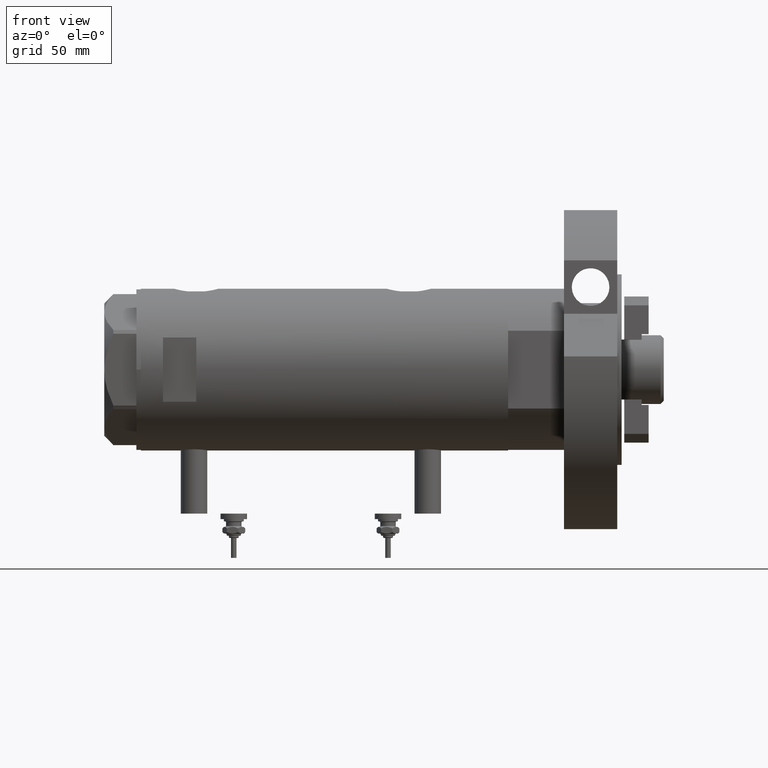
[diagram: clean part render]
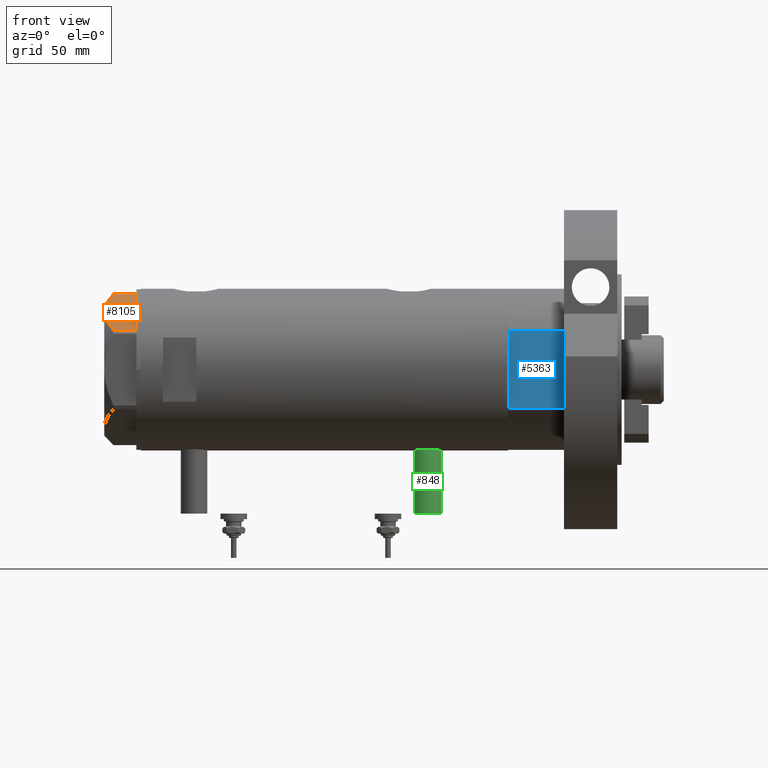
[diagram: same view with three faces highlighted in distinct colors, each labeled with its STEP entity id]
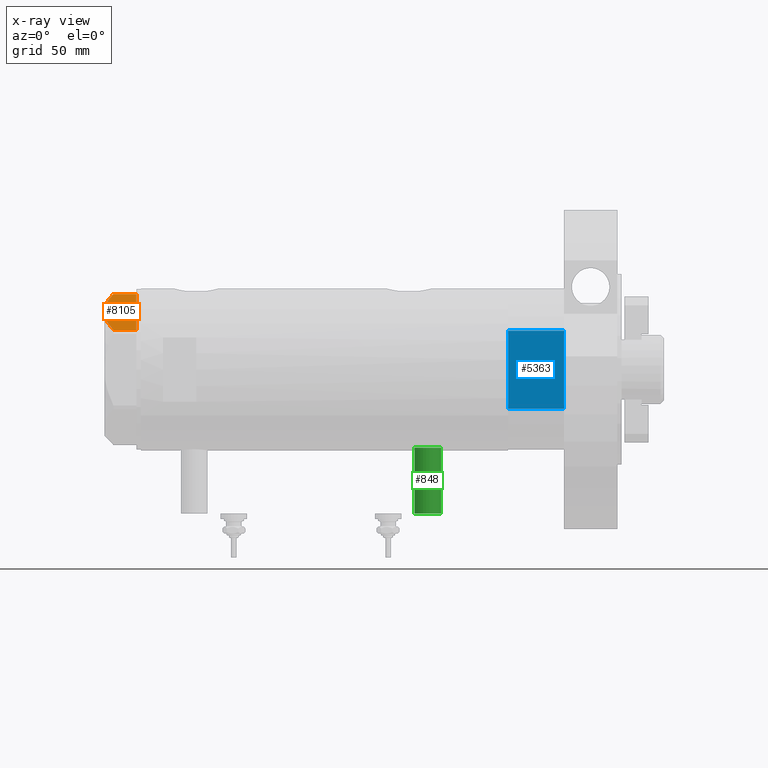
[diagram: x-ray of the same camera — body ghosted, the three highlighted faces saturated]
A machine part, front view with three faces highlighted in distinct colors.
The next image is the same camera in x-ray (body ghosted, the three faces saturated) — at least one of them is partly hidden behind the body in this view.
Their STEP definitions:

[orange] entity #8105 — the highlighted planar face has unit normal (-0, 0.5, -0.866).
#268 = CARTESIAN_POINT ( 'NONE',  ( -0.9699484522385841689, -34.08101615137752560, 10.40518423703605322 ) ) ;
#270 = VERTEX_POINT ( 'NONE', #3466 ) ;
#296 = VERTEX_POINT ( 'NONE', #1033 ) ;
#305 = CARTESIAN_POINT ( 'NONE',  ( -0.9699484522385886098, -34.08101615137752560, 0.000000000000000000 ) ) ;
#348 = EDGE_CURVE ( 'NONE', #2807, #270, #2880, .T. ) ;
#423 = CARTESIAN_POINT ( 'NONE',  ( -30.00000000000000000, -17.32050807568877460, 0.000000000000000000 ) ) ;
#453 = CARTESIAN_POINT ( 'NONE',  ( -16.22616138060132940, -25.27283751037305137, 14.47500996539161910 ) ) ;
#631 = ORIENTED_EDGE ( 'NONE', *, *, #7159, .F. ) ;
#867 = ORIENTED_EDGE ( 'NONE', *, *, #8203, .T. ) ;
#1033 = CARTESIAN_POINT ( 'NONE',  ( -14.99999999999999645, -25.98076211353316367, 14.50000000000000000 ) ) ;
#1140 = VECTOR ( 'NONE', #2902, 1000.000000000000227 ) ;
#1246 = B_SPLINE_CURVE_WITH_KNOTS ( 'NONE', 3,
 ( #4242, #2351, #6017, #4916, #1525, #4070, #6648, #1567, #3522, #268 ),
 .UNSPECIFIED., .F., .F.,
 ( 4, 2, 2, 2, 4 ),
 ( 0.01795453117522812295, 0.02625795893839792672, 0.02833381587919037853, 0.03040967281998283034, 0.03456138670156772702 ),
 .UNSPECIFIED. ) ;
#1307 = EDGE_CURVE ( 'NONE', #296, #270, #1246, .T. ) ;
#1525 = CARTESIAN_POINT ( 'NONE',  ( -6.639151835533460222, -30.80790005194150183, 12.99122625442232604 ) ) ;
#1567 = CARTESIAN_POINT ( 'NONE',  ( -3.192653970405496811, -32.79773652213460622, 11.56973717813738745 ) ) ;
#1649 = PLANE ( 'NONE',  #6001 ) ;
#2289 = VECTOR ( 'NONE', #4176, 1000.000000000000000 ) ;
#2329 = CARTESIAN_POINT ( 'NONE',  ( -21.07077273125423744, -22.47579984295447630, 13.71922620632299150 ) ) ;
#2351 = CARTESIAN_POINT ( 'NONE',  ( -12.56968319190124639, -27.38390617690504669, 14.50000000000000711 ) ) ;
#2370 = CARTESIAN_POINT ( 'NONE',  ( -15.61187731150016411, -25.62749458302751648, 14.50000000000000355 ) ) ;
#2807 = VERTEX_POINT ( 'NONE', #305 ) ;
#2863 = CARTESIAN_POINT ( 'NONE',  ( -30.00000000000000000, -17.32050807568877460, 14.50000000000000000 ) ) ;
#2880 = LINE ( 'NONE', #3583, #2289 ) ;
#2902 = DIRECTION ( 'NONE',  ( 0.8660254037844387076, -0.4999999999999997780, 0.000000000000000000 ) ) ;
#2984 = FACE_OUTER_BOUND ( 'NONE', #6954, .T. ) ;
#3089 = CARTESIAN_POINT ( 'NONE',  ( -29.03005154776157326, -17.88050807568868805, 10.40518423703595374 ) ) ;
#3466 = CARTESIAN_POINT ( 'NONE',  ( -0.9699484522385841689, -34.08101615137752560, 10.40518423703605322 ) ) ;
#3522 = CARTESIAN_POINT ( 'NONE',  ( -2.073315687465953960, -33.44398678110400169, 11.01056656432686509 ) ) ;
#3583 = CARTESIAN_POINT ( 'NONE',  ( -0.9699484522385850571, -34.08101615137752560, 14.50000000000000000 ) ) ;
#3622 = CARTESIAN_POINT ( 'NONE',  ( -24.56959650245797988, -20.45575299680293568, 12.63511531451932512 ) ) ;
#3679 = CARTESIAN_POINT ( 'NONE',  ( -29.03005154776157326, -17.88050807568868805, 10.40518423703595374 ) ) ;
#3707 = VECTOR ( 'NONE', #3777, 1000.000000000000000 ) ;
#3777 = DIRECTION ( 'NONE',  ( -0.000000000000000000, 0.000000000000000000, -1.000000000000000000 ) ) ;
#4070 = CARTESIAN_POINT ( 'NONE',  ( -5.477433827011700451, -31.47861825688396564, 12.55468001512206300 ) ) ;
#4176 = DIRECTION ( 'NONE',  ( 0.000000000000000000, 0.000000000000000000, 1.000000000000000000 ) ) ;
#4242 = CARTESIAN_POINT ( 'NONE',  ( -14.99999999999999645, -25.98076211353316367, 14.50000000000000000 ) ) ;
#4303 = CARTESIAN_POINT ( 'NONE',  ( -18.07068105770097688, -24.20790357827401351, 14.29910535634586921 ) ) ;
#4415 = VERTEX_POINT ( 'NONE', #6071 ) ;
#4449 = LINE ( 'NONE', #5088, #3707 ) ;
#4797 = EDGE_CURVE ( 'NONE', #4415, #2807, #6730, .T. ) ;
#4916 = CARTESIAN_POINT ( 'NONE',  ( -7.227334865371702222, -30.46831242133162476, 13.19311392138147276 ) ) ;
#5088 = CARTESIAN_POINT ( 'NONE',  ( -29.03005154776141339, -17.88050807568878042, 14.50000000000000000 ) ) ;
#5360 = VERTEX_POINT ( 'NONE', #3679 ) ;
#5572 = CARTESIAN_POINT ( 'NONE',  ( -19.88494945387373747, -23.16043523136143278, 14.00566141361761119 ) ) ;
#5596 = DIRECTION ( 'NONE',  ( 0.4999999999999998335, 0.8660254037844388186, -0.000000000000000000 ) ) ;
#5973 = B_SPLINE_CURVE_WITH_KNOTS ( 'NONE', 3,
 ( #3089, #8154, #3622, #2329, #5572, #4303, #8239, #453, #2370, #6118 ),
 .UNSPECIFIED., .F., .F.,
 ( 4, 2, 2, 2, 4 ),
 ( 0.001230196178133391958, 0.009592363676680756152, 0.01377344742595443955, 0.01586398930059127951, 0.01795453117522812295 ),
 .UNSPECIFIED. ) ;
#6001 = AXIS2_PLACEMENT_3D ( 'NONE', #2863, #5596, #8131 ) ;
#6017 = CARTESIAN_POINT ( 'NONE',  ( -10.17780078270465616, -28.76486012972462447, 14.10092492974135148 ) ) ;
#6071 = CARTESIAN_POINT ( 'NONE',  ( -29.03005154776141339, -17.88050807568878042, 0.000000000000000000 ) ) ;
#6118 = CARTESIAN_POINT ( 'NONE',  ( -14.99999999999999645, -25.98076211353316367, 14.50000000000000000 ) ) ;
#6648 = CARTESIAN_POINT ( 'NONE',  ( -4.902385341342997194, -31.81062265488187535, 12.31959434659020758 ) ) ;
#6730 = LINE ( 'NONE', #423, #1140 ) ;
#6954 = EDGE_LOOP ( 'NONE', ( #631, #867, #8272, #8107, #7703 ) ) ;
#7159 = EDGE_CURVE ( 'NONE', #5360, #296, #5973, .T. ) ;
#7703 = ORIENTED_EDGE ( 'NONE', *, *, #1307, .F. ) ;
#8105 = ADVANCED_FACE ( 'NONE', ( #2984 ), #1649, .F. ) ;
#8107 = ORIENTED_EDGE ( 'NONE', *, *, #348, .T. ) ;
#8131 = DIRECTION ( 'NONE',  ( -0.8660254037844387076, 0.4999999999999997780, 0.000000000000000000 ) ) ;
#8154 = CARTESIAN_POINT ( 'NONE',  ( -26.82462797925472842, -19.15380996664326219, 11.61522964162834626 ) ) ;
#8203 = EDGE_CURVE ( 'NONE', #5360, #4415, #4449, .T. ) ;
#8239 = CARTESIAN_POINT ( 'NONE',  ( -17.45962150578836258, -24.56069897506165489, 14.37423503257922164 ) ) ;
#8272 = ORIENTED_EDGE ( 'NONE', *, *, #4797, .T. ) ;

[blue] entity #5363 — the highlighted planar face has unit normal (-0, 1, 0).
#49 = VECTOR ( 'NONE', #7401, 1000.000000000000000 ) ;
#166 = VERTEX_POINT ( 'NONE', #7860 ) ;
#169 = VERTEX_POINT ( 'NONE', #2031 ) ;
#277 = CARTESIAN_POINT ( 'NONE',  ( 17.55704986607943141, -32.00000000000000000, 0.000000000000000000 ) ) ;
#383 = LINE ( 'NONE', #6768, #49 ) ;
#466 = DIRECTION ( 'NONE',  ( -0.000000000000000000, -0.000000000000000000, 1.000000000000000000 ) ) ;
#487 = VECTOR ( 'NONE', #8320, 1000.000000000000000 ) ;
#783 = ORIENTED_EDGE ( 'NONE', *, *, #3662, .F. ) ;
#1212 = DIRECTION ( 'NONE',  ( 0.000000000000000000, -0.000000000000000000, 1.000000000000000000 ) ) ;
#1399 = LINE ( 'NONE', #2016, #2752 ) ;
#1532 = VERTEX_POINT ( 'NONE', #6077 ) ;
#2016 = CARTESIAN_POINT ( 'NONE',  ( -17.55704986607943141, -32.00000000000000000, 0.000000000000000000 ) ) ;
#2031 = CARTESIAN_POINT ( 'NONE',  ( -17.55704986607943496, -32.00000000000000000, 0.000000000000000000 ) ) ;
#2162 = VERTEX_POINT ( 'NONE', #4381 ) ;
#2348 = AXIS2_PLACEMENT_3D ( 'NONE', #5705, #8286, #1212 ) ;
#2380 = EDGE_LOOP ( 'NONE', ( #3527, #783, #4012, #7121, #6677 ) ) ;
#2573 = DIRECTION ( 'NONE',  ( -1.000000000000000000, -0.000000000000000000, -0.000000000000000000 ) ) ;
#2752 = VECTOR ( 'NONE', #2573, 1000.000000000000000 ) ;
#2947 = EDGE_CURVE ( 'NONE', #166, #1532, #383, .T. ) ;
#3058 = FACE_OUTER_BOUND ( 'NONE', #2380, .T. ) ;
#3527 = ORIENTED_EDGE ( 'NONE', *, *, #2947, .T. ) ;
#3662 = EDGE_CURVE ( 'NONE', #169, #1532, #4357, .T. ) ;
#3686 = CARTESIAN_POINT ( 'NONE',  ( -17.55704986607943141, -32.00000000000000000, 0.000000000000000000 ) ) ;
#3839 = CARTESIAN_POINT ( 'NONE',  ( 17.55704986607943141, -32.00000000000000000, 0.000000000000000000 ) ) ;
#4012 = ORIENTED_EDGE ( 'NONE', *, *, #6082, .F. ) ;
#4357 = LINE ( 'NONE', #3686, #4869 ) ;
#4381 = CARTESIAN_POINT ( 'NONE',  ( 0.000000000000000000, -32.00000000000000000, 0.000000000000000000 ) ) ;
#4509 = LINE ( 'NONE', #3839, #487 ) ;
#4631 = EDGE_CURVE ( 'NONE', #5987, #2162, #1399, .T. ) ;
#4869 = VECTOR ( 'NONE', #466, 1000.000000000000000 ) ;
#5165 = VECTOR ( 'NONE', #8097, 1000.000000000000000 ) ;
#5363 = ADVANCED_FACE ( 'NONE', ( #3058 ), #6884, .F. ) ;
#5600 = LINE ( 'NONE', #8186, #5165 ) ;
#5705 = CARTESIAN_POINT ( 'NONE',  ( -17.55704986607943141, -32.00000000000000000, 0.000000000000000000 ) ) ;
#5987 = VERTEX_POINT ( 'NONE', #277 ) ;
#6077 = CARTESIAN_POINT ( 'NONE',  ( -17.55704986607943496, -32.00000000000000000, 25.19999999999999929 ) ) ;
#6082 = EDGE_CURVE ( 'NONE', #2162, #169, #5600, .T. ) ;
#6677 = ORIENTED_EDGE ( 'NONE', *, *, #7264, .T. ) ;
#6768 = CARTESIAN_POINT ( 'NONE',  ( -17.55704986607943141, -32.00000000000000000, 25.19999999999999929 ) ) ;
#6884 = PLANE ( 'NONE',  #2348 ) ;
#7121 = ORIENTED_EDGE ( 'NONE', *, *, #4631, .F. ) ;
#7264 = EDGE_CURVE ( 'NONE', #5987, #166, #4509, .T. ) ;
#7401 = DIRECTION ( 'NONE',  ( -1.000000000000000000, -0.000000000000000000, -0.000000000000000000 ) ) ;
#7860 = CARTESIAN_POINT ( 'NONE',  ( 17.55704986607943496, -32.00000000000000000, 25.19999999999999929 ) ) ;
#8097 = DIRECTION ( 'NONE',  ( -1.000000000000000000, -0.000000000000000000, -0.000000000000000000 ) ) ;
#8186 = CARTESIAN_POINT ( 'NONE',  ( -17.55704986607943141, -32.00000000000000000, 0.000000000000000000 ) ) ;
#8286 = DIRECTION ( 'NONE',  ( -0.000000000000000000, 1.000000000000000000, 0.000000000000000000 ) ) ;
#8320 = DIRECTION ( 'NONE',  ( -0.000000000000000000, -0.000000000000000000, 1.000000000000000000 ) ) ;

[green] entity #848 — the highlighted cylindrical surface (edge-blend (fillet) strip) has radius 6 mm, axis along (0, 0, 1).
#38 = LINE ( 'NONE', #2593, #580 ) ;
#125 = VERTEX_POINT ( 'NONE', #913 ) ;
#299 = VECTOR ( 'NONE', #1233, 1000.000000000000000 ) ;
#580 = VECTOR ( 'NONE', #790, 1000.000000000000000 ) ;
#790 = DIRECTION ( 'NONE',  ( 1.000000000000000000, -0.000000000000000000, -0.000000000000000000 ) ) ;
#848 = ADVANCED_FACE ( 'NONE', ( #7383 ), #7974, .T. ) ;
#913 = CARTESIAN_POINT ( 'NONE',  ( -35.29999999999999716, 0.000000000000000000, -52.60000000000000853 ) ) ;
#953 = EDGE_CURVE ( 'NONE', #1433, #125, #3080, .T. ) ;
#1233 = DIRECTION ( 'NONE',  ( 1.000000000000000000, -0.000000000000000000, -0.000000000000000000 ) ) ;
#1433 = VERTEX_POINT ( 'NONE', #6387 ) ;
#1602 = DIRECTION ( 'NONE',  ( -1.000000000000000000, 0.000000000000000000, 0.000000000000000000 ) ) ;
#1856 = CARTESIAN_POINT ( 'NONE',  ( -65.00000000000000000, 0.000000000000000000, -52.60000000000000853 ) ) ;
#2033 = DIRECTION ( 'NONE',  ( -1.000000000000000000, 0.000000000000000000, 0.000000000000000000 ) ) ;
#2593 = CARTESIAN_POINT ( 'NONE',  ( -65.00000000000000000, 7.347880794884122694E-16, -40.59999999999999432 ) ) ;
#3080 = LINE ( 'NONE', #1856, #299 ) ;
#3103 = EDGE_CURVE ( 'NONE', #125, #5970, #4196, .T. ) ;
#3159 = EDGE_CURVE ( 'NONE', #4117, #5970, #38, .T. ) ;
#3386 = AXIS2_PLACEMENT_3D ( 'NONE', #6508, #2033, #4644 ) ;
#3451 = CARTESIAN_POINT ( 'NONE',  ( -35.29999999999999716, 7.347880794884119736E-16, -40.59999999999999432 ) ) ;
#3552 = EDGE_CURVE ( 'NONE', #1433, #4117, #7580, .T. ) ;
#4117 = VERTEX_POINT ( 'NONE', #7653 ) ;
#4196 = CIRCLE ( 'NONE', #3386, 6.000000000000005329 ) ;
#4644 = DIRECTION ( 'NONE',  ( 0.000000000000000000, 0.000000000000000000, 1.000000000000000000 ) ) ;
#4800 = CARTESIAN_POINT ( 'NONE',  ( -65.00000000000000000, 0.000000000000000000, -46.60000000000000142 ) ) ;
#5395 = EDGE_LOOP ( 'NONE', ( #6725, #5781, #5663, #7645 ) ) ;
#5663 = ORIENTED_EDGE ( 'NONE', *, *, #953, .T. ) ;
#5781 = ORIENTED_EDGE ( 'NONE', *, *, #3552, .F. ) ;
#5970 = VERTEX_POINT ( 'NONE', #3451 ) ;
#6188 = DIRECTION ( 'NONE',  ( 0.000000000000000000, 0.000000000000000000, -1.000000000000000000 ) ) ;
#6387 = CARTESIAN_POINT ( 'NONE',  ( -65.00000000000000000, 0.000000000000000000, -52.60000000000000853 ) ) ;
#6508 = CARTESIAN_POINT ( 'NONE',  ( -35.29999999999999716, 0.000000000000000000, -46.60000000000000142 ) ) ;
#6725 = ORIENTED_EDGE ( 'NONE', *, *, #3159, .F. ) ;
#6729 = DIRECTION ( 'NONE',  ( 0.000000000000000000, 0.000000000000000000, 1.000000000000000000 ) ) ;
#6743 = DIRECTION ( 'NONE',  ( 1.000000000000000000, -0.000000000000000000, -0.000000000000000000 ) ) ;
#6770 = CARTESIAN_POINT ( 'NONE',  ( -65.00000000000000000, 0.000000000000000000, -46.60000000000000142 ) ) ;
#7383 = FACE_OUTER_BOUND ( 'NONE', #5395, .T. ) ;
#7580 = CIRCLE ( 'NONE', #8252, 6.000000000000005329 ) ;
#7645 = ORIENTED_EDGE ( 'NONE', *, *, #3103, .T. ) ;
#7653 = CARTESIAN_POINT ( 'NONE',  ( -65.00000000000000000, 7.347880794884119736E-16, -40.59999999999999432 ) ) ;
#7974 = CYLINDRICAL_SURFACE ( 'NONE', #8087, 6.000000000000005329 ) ;
#8087 = AXIS2_PLACEMENT_3D ( 'NONE', #4800, #6743, #6188 ) ;
#8252 = AXIS2_PLACEMENT_3D ( 'NONE', #6770, #1602, #6729 ) ;